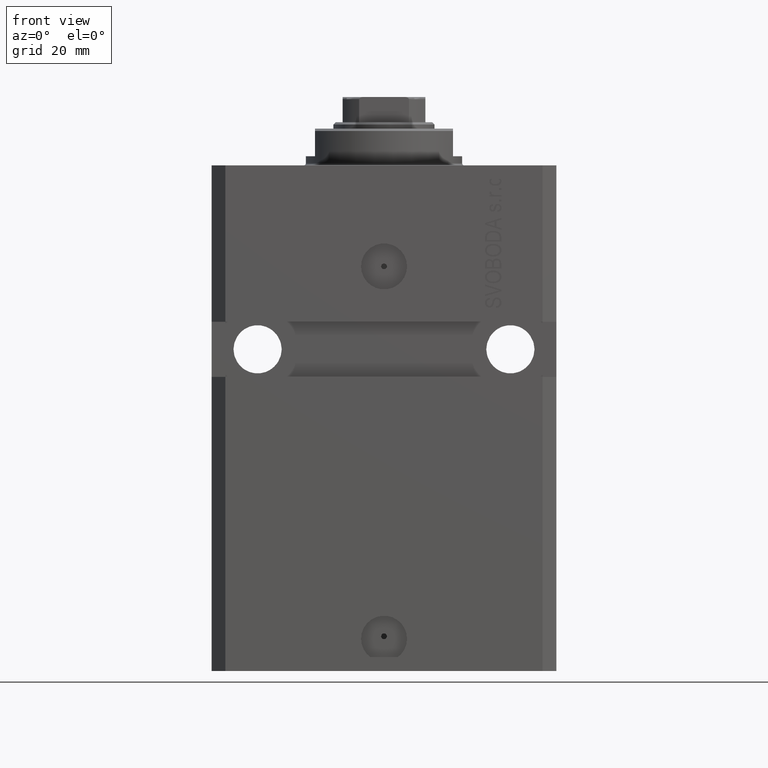
[diagram: clean part render]
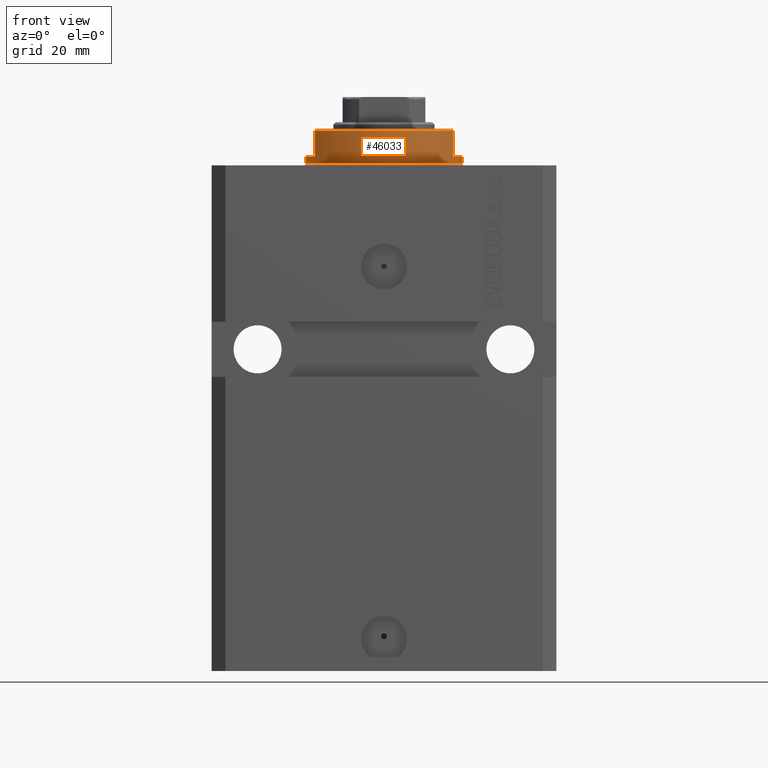
[diagram: same view with one face highlighted and labeled with its STEP entity id]
A machine part, front view. The second image highlights one B-rep face of the part: STEP entity #46033.
In plain terms, the highlighted cylindrical surface (partial cylindrical patch) has radius 17 mm, axis along (0, 0, -1).
Its self-contained STEP definition (entity closure, byte-faithful):
#664 = VECTOR ( 'NONE', #38401, 1000.000000000000000 ) ;
#937 = ORIENTED_EDGE ( 'NONE', *, *, #19256, .F. ) ;
#1234 = DIRECTION ( 'NONE',  ( 1.000000000000000000, 0.000000000000000000, 0.000000000000000000 ) ) ;
#1481 = CARTESIAN_POINT ( 'NONE',  ( -14.99999999999999645, -8.000000000000003553, -2.000000000000000000 ) ) ;
#1539 = AXIS2_PLACEMENT_3D ( 'NONE', #17683, #32262, #21510 ) ;
#2207 = VECTOR ( 'NONE', #35256, 1000.000000000000000 ) ;
#3836 = ORIENTED_EDGE ( 'NONE', *, *, #11962, .F. ) ;
#3952 = FACE_OUTER_BOUND ( 'NONE', #28532, .T. ) ;
#4001 = DIRECTION ( 'NONE',  ( -0.000000000000000000, -0.000000000000000000, -1.000000000000000000 ) ) ;
#7302 = CARTESIAN_POINT ( 'NONE',  ( 0.000000000000000000, 0.000000000000000000, -8.000000000000000000 ) ) ;
#8133 = CARTESIAN_POINT ( 'NONE',  ( -17.00000000000000000, 2.081899558550500280E-15, -0.5000000000000004441 ) ) ;
#8613 = VECTOR ( 'NONE', #38048, 1000.000000000000000 ) ;
#9778 = ORIENTED_EDGE ( 'NONE', *, *, #38134, .F. ) ;
#11927 = EDGE_CURVE ( 'NONE', #26196, #28569, #43566, .T. ) ;
#11962 = EDGE_CURVE ( 'NONE', #17201, #41745, #21808, .T. ) ;
#12760 = ORIENTED_EDGE ( 'NONE', *, *, #26041, .T. ) ;
#13566 = VERTEX_POINT ( 'NONE', #29575 ) ;
#15449 = CIRCLE ( 'NONE', #30713, 17.00000000000000000 ) ;
#15918 = LINE ( 'NONE', #23563, #664 ) ;
#16263 = DIRECTION ( 'NONE',  ( 0.000000000000000000, 0.000000000000000000, -1.000000000000000000 ) ) ;
#16802 = ORIENTED_EDGE ( 'NONE', *, *, #27086, .T. ) ;
#16878 = CARTESIAN_POINT ( 'NONE',  ( 14.99999999999999645, -8.000000000000003553, -2.000000000000000000 ) ) ;
#17201 = VERTEX_POINT ( 'NONE', #35073 ) ;
#17344 = EDGE_CURVE ( 'NONE', #40330, #36575, #15918, .T. ) ;
#17503 = EDGE_CURVE ( 'NONE', #28917, #13566, #46533, .T. ) ;
#17683 = CARTESIAN_POINT ( 'NONE',  ( 0.000000000000000000, 0.000000000000000000, -2.000000000000000000 ) ) ;
#19256 = EDGE_CURVE ( 'NONE', #26196, #28917, #31329, .T. ) ;
#20763 = ORIENTED_EDGE ( 'NONE', *, *, #17503, .F. ) ;
#21079 = AXIS2_PLACEMENT_3D ( 'NONE', #7302, #32417, #1234 ) ;
#21443 = DIRECTION ( 'NONE',  ( -1.000000000000000000, 0.000000000000000000, 0.000000000000000000 ) ) ;
#21510 = DIRECTION ( 'NONE',  ( -1.000000000000000000, 0.000000000000000000, 0.000000000000000000 ) ) ;
#21808 = LINE ( 'NONE', #36389, #8613 ) ;
#22261 = CARTESIAN_POINT ( 'NONE',  ( 17.00000000000000000, 0.000000000000000000, -8.000000000000000000 ) ) ;
#22999 = CIRCLE ( 'NONE', #37242, 17.00000000000000000 ) ;
#23563 = CARTESIAN_POINT ( 'NONE',  ( -15.00000000000000000, -8.000000000000001776, -8.000000000000000000 ) ) ;
#24748 = CARTESIAN_POINT ( 'NONE',  ( 15.00000000000000000, -8.000000000000001776, -8.000000000000000000 ) ) ;
#25043 = CARTESIAN_POINT ( 'NONE',  ( 17.00000000000000000, 0.000000000000000000, -0.5000000000000004441 ) ) ;
#25392 = DIRECTION ( 'NONE',  ( -0.000000000000000000, -0.000000000000000000, 1.000000000000000000 ) ) ;
#26041 = EDGE_CURVE ( 'NONE', #28569, #41745, #15449, .T. ) ;
#26196 = VERTEX_POINT ( 'NONE', #27896 ) ;
#27086 = EDGE_CURVE ( 'NONE', #36575, #13566, #40649, .T. ) ;
#27896 = CARTESIAN_POINT ( 'NONE',  ( 17.00000000000000000, 0.000000000000000000, -2.000000000000000000 ) ) ;
#28139 = CARTESIAN_POINT ( 'NONE',  ( 0.000000000000000000, 0.000000000000000000, -7.500000000000013323 ) ) ;
#28532 = EDGE_LOOP ( 'NONE', ( #3836, #9778, #43746, #16802, #20763, #937, #46565, #12760 ) ) ;
#28569 = VERTEX_POINT ( 'NONE', #25043 ) ;
#28917 = VERTEX_POINT ( 'NONE', #16878 ) ;
#29366 = DIRECTION ( 'NONE',  ( 1.000000000000000000, 0.000000000000000000, 0.000000000000000000 ) ) ;
#29575 = CARTESIAN_POINT ( 'NONE',  ( 15.00000000000000000, -8.000000000000001776, -7.500000000000013323 ) ) ;
#30713 = AXIS2_PLACEMENT_3D ( 'NONE', #40839, #4001, #29366 ) ;
#31329 = CIRCLE ( 'NONE', #1539, 17.00000000000000000 ) ;
#32262 = DIRECTION ( 'NONE',  ( 0.000000000000000000, 0.000000000000000000, -1.000000000000000000 ) ) ;
#32417 = DIRECTION ( 'NONE',  ( -0.000000000000000000, -0.000000000000000000, 1.000000000000000000 ) ) ;
#33709 = CARTESIAN_POINT ( 'NONE',  ( 0.000000000000000000, 0.000000000000000000, -2.000000000000000000 ) ) ;
#34021 = CYLINDRICAL_SURFACE ( 'NONE', #21079, 17.00000000000000000 ) ;
#34543 = AXIS2_PLACEMENT_3D ( 'NONE', #28139, #46817, #21443 ) ;
#35073 = CARTESIAN_POINT ( 'NONE',  ( -17.00000000000000000, 2.081899558550500280E-15, -2.000000000000000000 ) ) ;
#35256 = DIRECTION ( 'NONE',  ( 0.000000000000000000, 0.000000000000000000, -1.000000000000000000 ) ) ;
#36389 = CARTESIAN_POINT ( 'NONE',  ( -17.00000000000000000, 2.081899558550500280E-15, -8.000000000000000000 ) ) ;
#36575 = VERTEX_POINT ( 'NONE', #44599 ) ;
#37242 = AXIS2_PLACEMENT_3D ( 'NONE', #33709, #16263, #37536 ) ;
#37536 = DIRECTION ( 'NONE',  ( -1.000000000000000000, 0.000000000000000000, 0.000000000000000000 ) ) ;
#38048 = DIRECTION ( 'NONE',  ( -0.000000000000000000, -0.000000000000000000, 1.000000000000000000 ) ) ;
#38134 = EDGE_CURVE ( 'NONE', #40330, #17201, #22999, .T. ) ;
#38401 = DIRECTION ( 'NONE',  ( 0.000000000000000000, 0.000000000000000000, -1.000000000000000000 ) ) ;
#40330 = VERTEX_POINT ( 'NONE', #1481 ) ;
#40649 = CIRCLE ( 'NONE', #34543, 17.00000000000000000 ) ;
#40839 = CARTESIAN_POINT ( 'NONE',  ( 0.000000000000000000, 0.000000000000000000, -0.5000000000000004441 ) ) ;
#41745 = VERTEX_POINT ( 'NONE', #8133 ) ;
#42187 = VECTOR ( 'NONE', #25392, 1000.000000000000000 ) ;
#43566 = LINE ( 'NONE', #22261, #42187 ) ;
#43746 = ORIENTED_EDGE ( 'NONE', *, *, #17344, .T. ) ;
#44599 = CARTESIAN_POINT ( 'NONE',  ( -15.00000000000000000, -8.000000000000001776, -7.500000000000014211 ) ) ;
#46033 = ADVANCED_FACE ( 'NONE', ( #3952 ), #34021, .T. ) ;
#46533 = LINE ( 'NONE', #24748, #2207 ) ;
#46565 = ORIENTED_EDGE ( 'NONE', *, *, #11927, .T. ) ;
#46817 = DIRECTION ( 'NONE',  ( 0.000000000000000000, 0.000000000000000000, 1.000000000000000000 ) ) ;